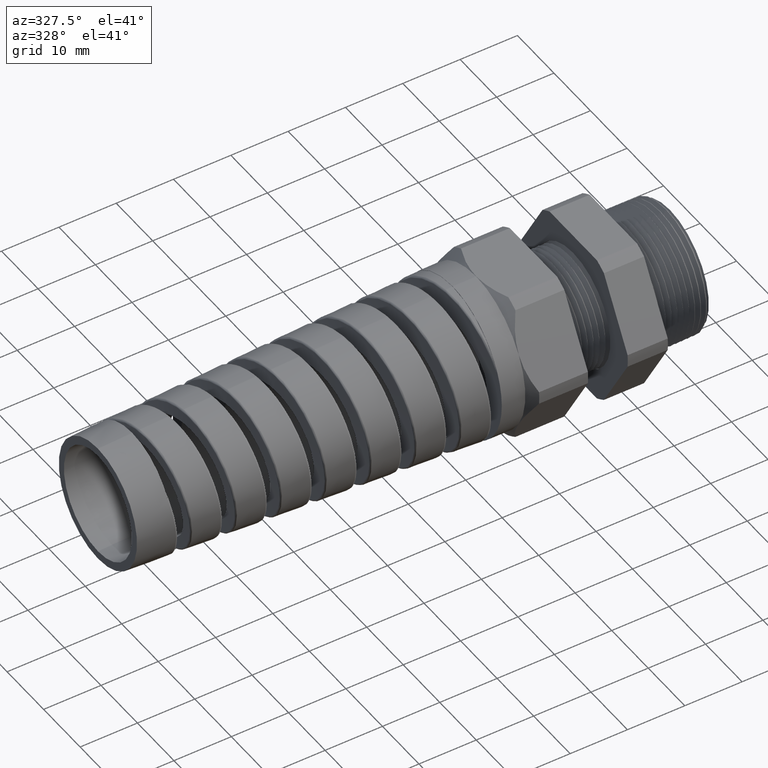
[diagram: clean part render]
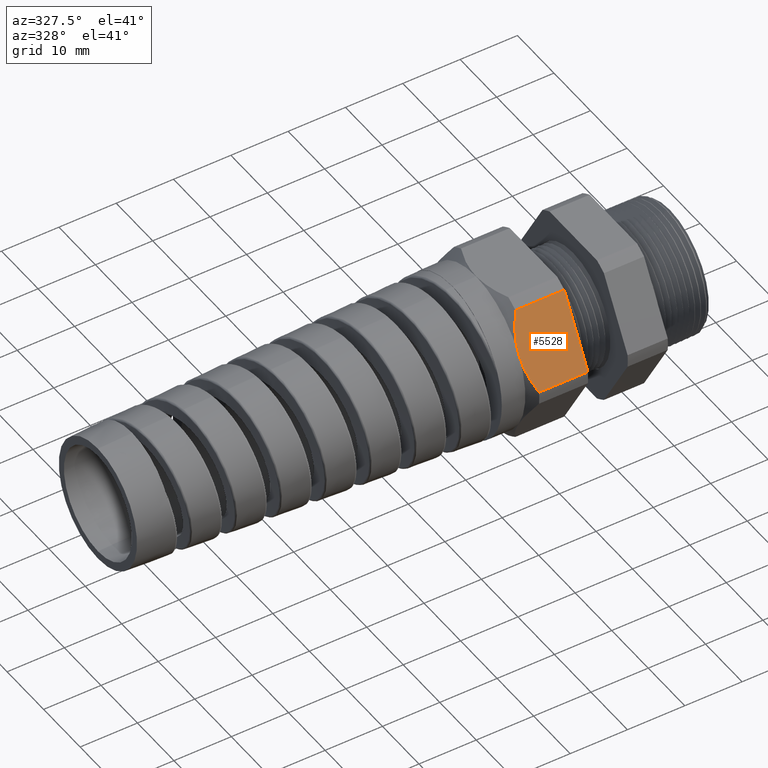
[diagram: same view with one face highlighted and labeled with its STEP entity id]
A machine part, auxiliary view. The second image highlights one B-rep face of the part: STEP entity #5528.
In plain terms, the highlighted planar face has unit normal (0, -0.866, 0.5).
Its self-contained STEP definition (entity closure, byte-faithful):
#210 = ORIENTED_EDGE ( 'NONE', *, *, #213, .F. ) ;
#211 = ORIENTED_EDGE ( 'NONE', *, *, #5540, .F. ) ;
#212 = EDGE_CURVE ( 'NONE', #5404, #5148, #6607, .T. ) ;
#213 = EDGE_CURVE ( 'NONE', #5410, #5147, #6605, .T. ) ;
#214 = ORIENTED_EDGE ( 'NONE', *, *, #212, .T. ) ;
#5147 = VERTEX_POINT ( 'NONE', #7648 ) ;
#5148 = VERTEX_POINT ( 'NONE', #7647 ) ;
#5404 = VERTEX_POINT ( 'NONE', #7701 ) ;
#5410 = VERTEX_POINT ( 'NONE', #7752 ) ;
#5423 = ORIENTED_EDGE ( 'NONE', *, *, #5527, .T. ) ;
#5424 = EDGE_LOOP ( 'NONE', ( #5423, #5525, #214, #211, #210 ) ) ;
#5428 = VERTEX_POINT ( 'NONE', #7748 ) ;
#5525 = ORIENTED_EDGE ( 'NONE', *, *, #5526, .T. ) ;
#5526 = EDGE_CURVE ( 'NONE', #5428, #5404, #7740, .T. ) ;
#5527 = EDGE_CURVE ( 'NONE', #5410, #5428, #7778, .T. ) ;
#5528 = ADVANCED_FACE ( 'NONE', ( #7774 ), #7773, .T. ) ;
#5540 = EDGE_CURVE ( 'NONE', #5147, #5148, #7813, .T. ) ;
#6589 = CARTESIAN_POINT ( 'NONE',  ( -1.211241480774603000, -0.5663269570453192100, 0.07909293670162989600 ) ) ;
#6590 = CARTESIAN_POINT ( 'NONE',  ( -1.226019315843663200, -0.5453093890909215300, 0.1154964322501781700 ) ) ;
#6591 = CARTESIAN_POINT ( 'NONE',  ( -1.246312732867944400, -0.5027329108612017500, 0.1892410557514034300 ) ) ;
#6593 = CARTESIAN_POINT ( 'NONE',  ( -1.251889763779527200, -0.4810835510446662700, 0.2267388469049829400 ) ) ;
#6595 = CARTESIAN_POINT ( 'NONE',  ( -1.251889763779527200, -0.4589934640057527500, 0.2649999999999999600 ) ) ;
#6597 = CARTESIAN_POINT ( 'NONE',  ( -0.8581889763779526600, -0.3588684640057528400, 0.4384215871078336300 ) ) ;
#6605 = LINE ( 'NONE', #6597, #6718 ) ;
#6607 = B_SPLINE_CURVE_WITH_KNOTS ( 'NONE', 3,
 ( #6595, #6593, #6591, #6590, #6589, #6719 ),
 .UNSPECIFIED., .F., .F.,
 ( 4, 2, 4 ),
 ( 0.006656663749350004100, 0.009982589261723363500, 0.01330851477409672100 ),
 .UNSPECIFIED. ) ;
#6716 = DIRECTION ( 'NONE',  ( 0.0000000000000000000, -0.4999999999999996100, -0.8660254037844388200 ) ) ;
#6718 = VECTOR ( 'NONE', #6716, 39.37007874015748900 ) ;
#6719 = CARTESIAN_POINT ( 'NONE',  ( -1.193589763779527400, -0.5866618723924793600, 0.04387183015273656700 ) ) ;
#7647 = CARTESIAN_POINT ( 'NONE',  ( -1.193589763779527400, -0.5866618723924793600, 0.04387183015273656700 ) ) ;
#7648 = CARTESIAN_POINT ( 'NONE',  ( -0.8581889763779526600, -0.5866618723924792400, 0.04387183015273651800 ) ) ;
#7701 = CARTESIAN_POINT ( 'NONE',  ( -1.251889763779527200, -0.4589934640057527500, 0.2649999999999999600 ) ) ;
#7740 = B_SPLINE_CURVE_WITH_KNOTS ( 'NONE', 3,
 ( #7788, #7787, #7786, #7785, #7784, #7783, #7782, #7781, #7780, #7779 ),
 .UNSPECIFIED., .F., .F.,
 ( 4, 2, 2, 2, 4 ),
 ( 2.483250567295418100E-007, 0.003328456037203363700, 0.004992559893276684100, 0.005824611821313344100, 0.006656663749350004100 ),
 .UNSPECIFIED. ) ;
#7748 = CARTESIAN_POINT ( 'NONE',  ( -1.193589763779527600, -0.3313250556190261400, 0.4861281698472628700 ) ) ;
#7752 = CARTESIAN_POINT ( 'NONE',  ( -0.8581889763779526600, -0.3313250556190262000, 0.4861281698472629300 ) ) ;
#7769 = DIRECTION ( 'NONE',  ( 0.0000000000000000000, -0.4999999999999996100, -0.8660254037844388200 ) ) ;
#7770 = DIRECTION ( 'NONE',  ( 0.0000000000000000000, -0.8660254037844388200, 0.4999999999999996100 ) ) ;
#7771 = CARTESIAN_POINT ( 'NONE',  ( 0.08000000000000023800, -0.5866618723924791300, 0.04387183015273688600 ) ) ;
#7772 = AXIS2_PLACEMENT_3D ( 'NONE', #7771, #7770, #7769 ) ;
#7773 = PLANE ( 'NONE',  #7772 ) ;
#7774 = FACE_OUTER_BOUND ( 'NONE', #5424, .T. ) ;
#7775 = DIRECTION ( 'NONE',  ( -1.000000000000000000, 0.0000000000000000000, 0.0000000000000000000 ) ) ;
#7776 = VECTOR ( 'NONE', #7775, 39.37007874015748100 ) ;
#7777 = CARTESIAN_POINT ( 'NONE',  ( 0.08000000000000023800, -0.3313250556190262000, 0.4861281698472629300 ) ) ;
#7778 = LINE ( 'NONE', #7777, #7776 ) ;
#7779 = CARTESIAN_POINT ( 'NONE',  ( -1.251889763779527200, -0.4589934640057527500, 0.2649999999999999600 ) ) ;
#7780 = CARTESIAN_POINT ( 'NONE',  ( -1.251889763779527000, -0.4534671527751353300, 0.2745718518298676500 ) ) ;
#7781 = CARTESIAN_POINT ( 'NONE',  ( -1.251540037294434500, -0.4478902963954337600, 0.2842312504260251500 ) ) ;
#7782 = CARTESIAN_POINT ( 'NONE',  ( -1.250150991423770700, -0.4368100751329627700, 0.3034227566117299000 ) ) ;
#7783 = CARTESIAN_POINT ( 'NONE',  ( -1.249116214783385600, -0.4313123634249590400, 0.3129450726153588100 ) ) ;
#7784 = CARTESIAN_POINT ( 'NONE',  ( -1.245052733735573700, -0.4149387478664447500, 0.3413050066663057000 ) ) ;
#7785 = CARTESIAN_POINT ( 'NONE',  ( -1.241064579270533900, -0.4041824008311379300, 0.3599355462353000000 ) ) ;
#7786 = CARTESIAN_POINT ( 'NONE',  ( -1.225791965079113600, -0.3723255875116259200, 0.4151131654719321100 ) ) ;
#7787 = CARTESIAN_POINT ( 'NONE',  ( -1.211219648637084500, -0.3516348201738636600, 0.4509506257485227400 ) ) ;
#7788 = CARTESIAN_POINT ( 'NONE',  ( -1.193589763779527600, -0.3313250556190261400, 0.4861281698472628700 ) ) ;
#7806 = DIRECTION ( 'NONE',  ( -1.000000000000000000, 0.0000000000000000000, 0.0000000000000000000 ) ) ;
#7807 = VECTOR ( 'NONE', #7806, 39.37007874015748100 ) ;
#7808 = CARTESIAN_POINT ( 'NONE',  ( 0.08000000000000023800, -0.5866618723924792400, 0.04387183015273651800 ) ) ;
#7813 = LINE ( 'NONE', #7808, #7807 ) ;